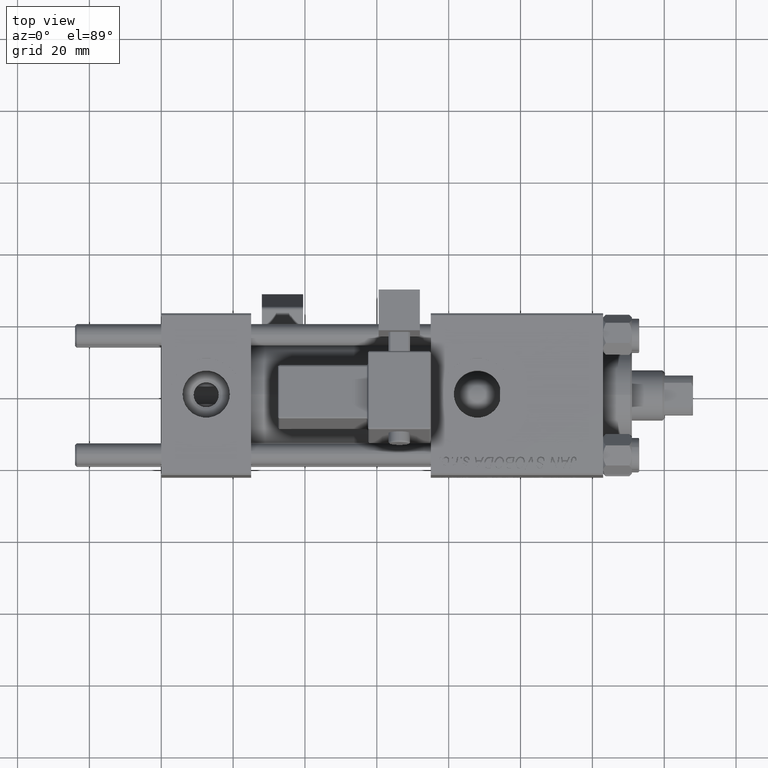
[diagram: clean part render]
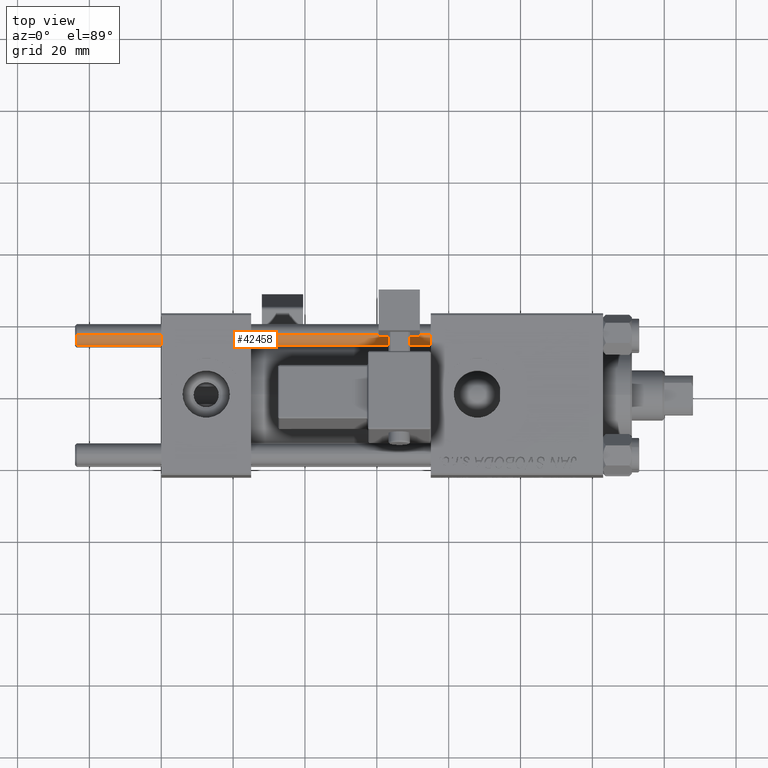
[diagram: same view with one face highlighted and labeled with its STEP entity id]
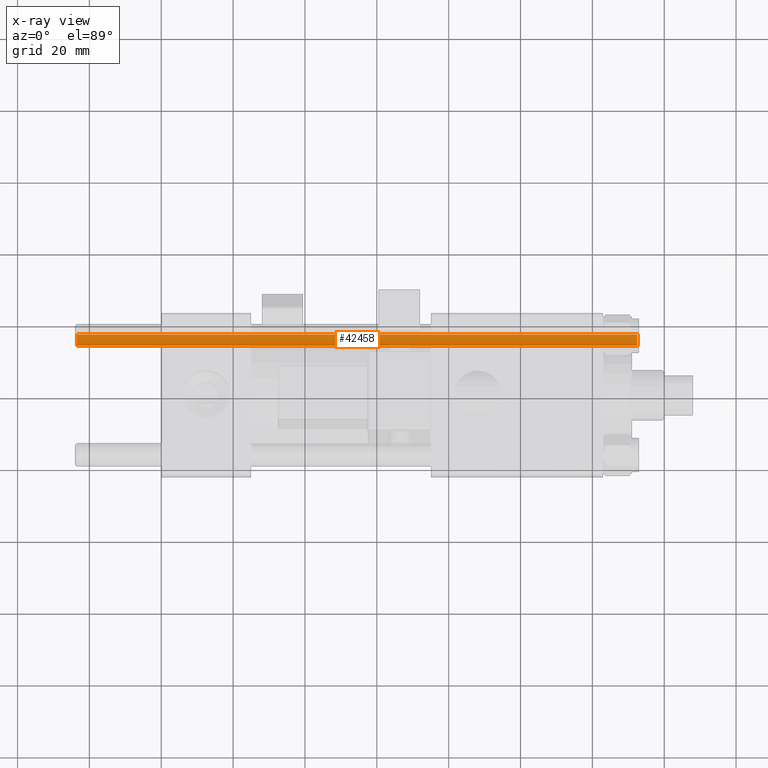
[diagram: x-ray of the same camera — body ghosted, the highlighted face saturated]
A machine part, top view. The second image highlights one B-rep face of the part: STEP entity #42458.
The next image is the same camera in x-ray: the body ghosted, the highlighted face saturated — about 1% of this face is hidden behind the body in this view.
In plain terms, the highlighted cylindrical surface (edge-blend (fillet) strip) has radius 3 mm, axis along (-1, -0, -0).
Its self-contained STEP definition (entity closure, byte-faithful):
#3201 = DIRECTION ( 'NONE',  ( -0.000000000000000000, -0.000000000000000000, 1.000000000000000000 ) ) ;
#5615 = DIRECTION ( 'NONE',  ( -0.000000000000000000, -0.000000000000000000, -1.000000000000000000 ) ) ;
#6274 = VERTEX_POINT ( 'NONE', #23297 ) ;
#8796 = CARTESIAN_POINT ( 'NONE',  ( -3.000000000000000444, 0.000000000000000000, 157.0000000000000000 ) ) ;
#12475 = CARTESIAN_POINT ( 'NONE',  ( -3.000000000000000444, 0.000000000000000000, 0.4999999999999726885 ) ) ;
#13268 = AXIS2_PLACEMENT_3D ( 'NONE', #17365, #25326, #49639 ) ;
#13480 = DIRECTION ( 'NONE',  ( -1.000000000000000000, 0.000000000000000000, 0.000000000000000000 ) ) ;
#13490 = EDGE_LOOP ( 'NONE', ( #41481, #29477, #25596, #25173 ) ) ;
#13512 = CARTESIAN_POINT ( 'NONE',  ( 3.000000000000000444, 3.673940397442060361E-16, 157.0000000000000000 ) ) ;
#15341 = CARTESIAN_POINT ( 'NONE',  ( 0.000000000000000000, 0.000000000000000000, 0.4999999999999726885 ) ) ;
#15495 = EDGE_CURVE ( 'NONE', #44992, #40540, #34406, .T. ) ;
#17365 = CARTESIAN_POINT ( 'NONE',  ( 0.000000000000000000, 0.000000000000000000, 156.5000000000000284 ) ) ;
#17449 = CARTESIAN_POINT ( 'NONE',  ( 0.000000000000000000, 0.000000000000000000, 157.0000000000000000 ) ) ;
#19752 = EDGE_CURVE ( 'NONE', #40540, #28292, #41318, .T. ) ;
#20853 = AXIS2_PLACEMENT_3D ( 'NONE', #15341, #3201, #28061 ) ;
#21690 = CYLINDRICAL_SURFACE ( 'NONE', #26913, 3.000000000000000444 ) ;
#22964 = CARTESIAN_POINT ( 'NONE',  ( -3.000000000000000444, 0.000000000000000000, 156.5000000000000284 ) ) ;
#23297 = CARTESIAN_POINT ( 'NONE',  ( 3.000000000000000444, 3.673940397442060361E-16, 0.4999999999999726885 ) ) ;
#25173 = ORIENTED_EDGE ( 'NONE', *, *, #39147, .T. ) ;
#25326 = DIRECTION ( 'NONE',  ( 0.000000000000000000, 0.000000000000000000, -1.000000000000000000 ) ) ;
#25404 = DIRECTION ( 'NONE',  ( -0.000000000000000000, -0.000000000000000000, -1.000000000000000000 ) ) ;
#25596 = ORIENTED_EDGE ( 'NONE', *, *, #19752, .T. ) ;
#26913 = AXIS2_PLACEMENT_3D ( 'NONE', #17449, #25404, #13480 ) ;
#28061 = DIRECTION ( 'NONE',  ( 1.000000000000000000, 0.000000000000000000, 0.000000000000000000 ) ) ;
#28292 = VERTEX_POINT ( 'NONE', #12475 ) ;
#29477 = ORIENTED_EDGE ( 'NONE', *, *, #15495, .T. ) ;
#29918 = LINE ( 'NONE', #13512, #45207 ) ;
#33362 = DIRECTION ( 'NONE',  ( -0.000000000000000000, -0.000000000000000000, -1.000000000000000000 ) ) ;
#34406 = CIRCLE ( 'NONE', #13268, 3.000000000000000444 ) ;
#34911 = CARTESIAN_POINT ( 'NONE',  ( 3.000000000000000444, 3.673940397442060361E-16, 156.5000000000000284 ) ) ;
#39147 = EDGE_CURVE ( 'NONE', #28292, #6274, #41964, .T. ) ;
#40540 = VERTEX_POINT ( 'NONE', #22964 ) ;
#41318 = LINE ( 'NONE', #8796, #46455 ) ;
#41481 = ORIENTED_EDGE ( 'NONE', *, *, #47563, .F. ) ;
#41777 = FACE_OUTER_BOUND ( 'NONE', #13490, .T. ) ;
#41964 = CIRCLE ( 'NONE', #20853, 3.000000000000000444 ) ;
#42458 = ADVANCED_FACE ( 'NONE', ( #41777 ), #21690, .T. ) ;
#44992 = VERTEX_POINT ( 'NONE', #34911 ) ;
#45207 = VECTOR ( 'NONE', #33362, 1000.000000000000000 ) ;
#46455 = VECTOR ( 'NONE', #5615, 1000.000000000000000 ) ;
#47563 = EDGE_CURVE ( 'NONE', #44992, #6274, #29918, .T. ) ;
#49639 = DIRECTION ( 'NONE',  ( 1.000000000000000000, 0.000000000000000000, 0.000000000000000000 ) ) ;